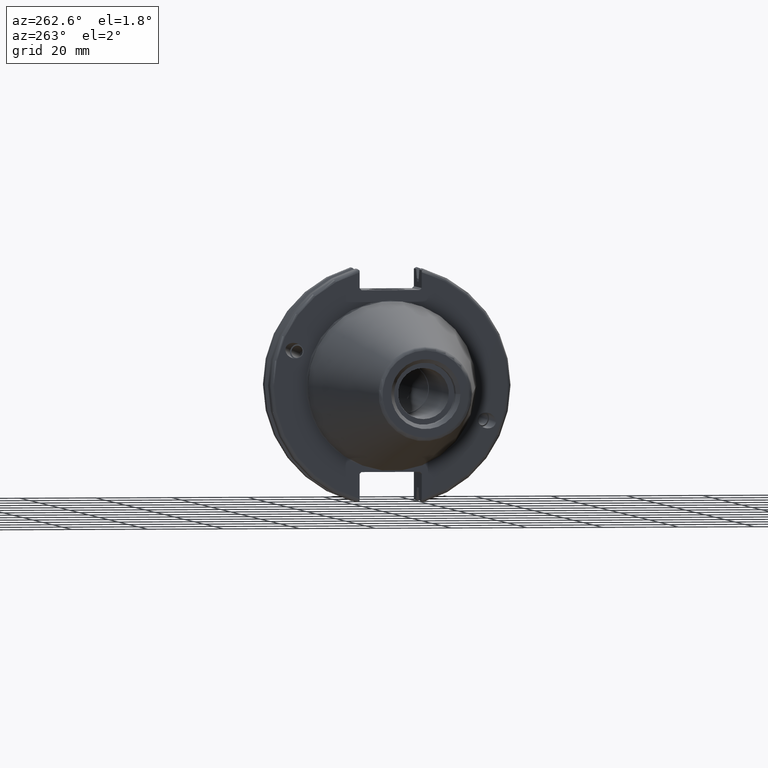
[diagram: clean part render]
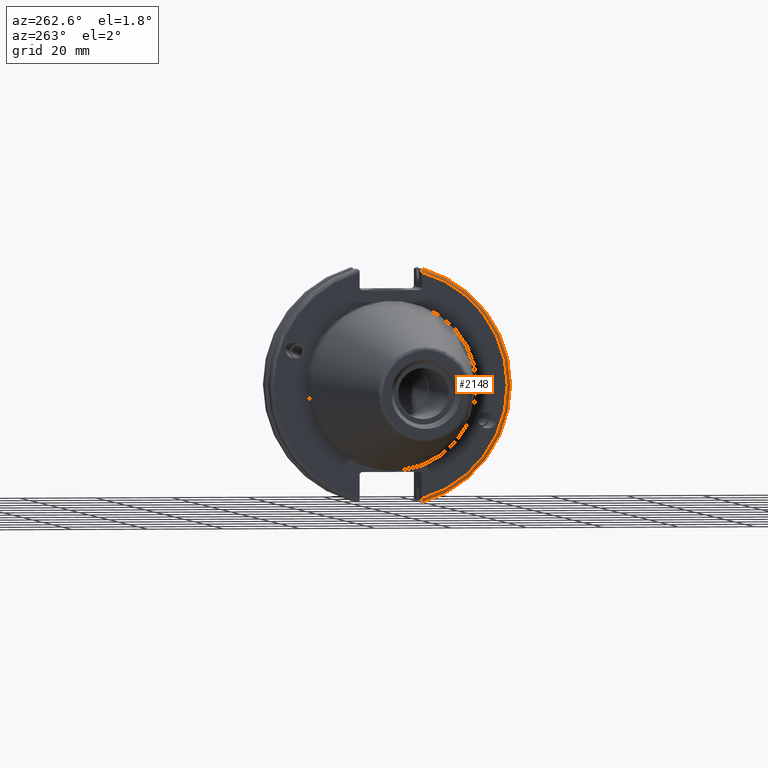
[diagram: same view with one face highlighted and labeled with its STEP entity id]
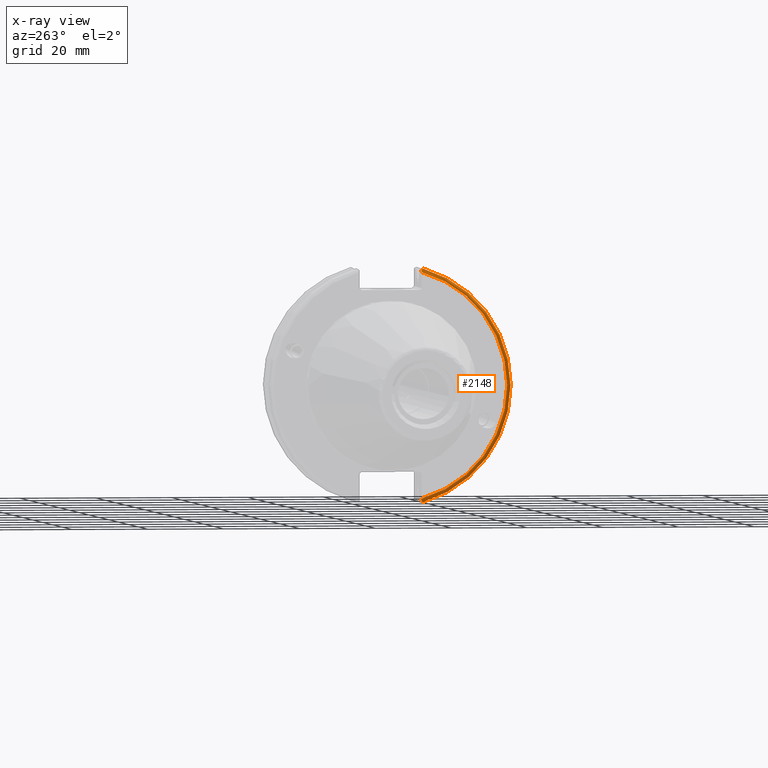
[diagram: x-ray of the same camera — body ghosted, the highlighted face saturated]
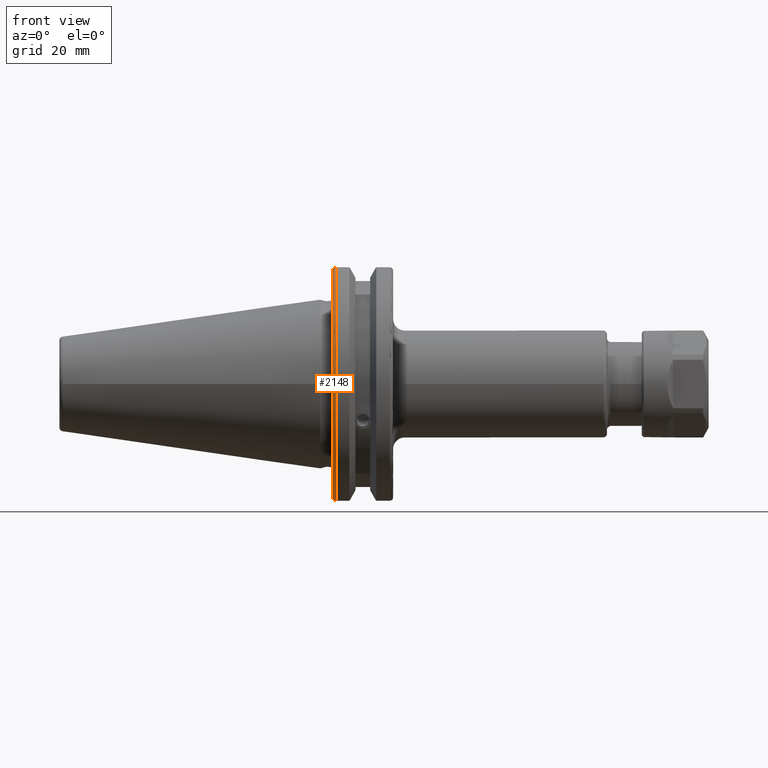
[diagram: same view with one face highlighted and labeled with its STEP entity id]
A machine part, auxiliary view. The second image highlights one B-rep face of the part: STEP entity #2148.
The next image is the same camera in x-ray: the body ghosted, the highlighted face saturated — about 0% of this face is hidden behind the body in this view.
A second angle (front view) of the same face is appended — the face is thin or edge-on in the first view.
In plain terms, the highlighted toroidal blend (fillet) surface has major radius 30.75 mm and minor (blend) radius 1 mm.
Its self-contained STEP definition (entity closure, byte-faithful):
#89=TOROIDAL_SURFACE('',#2426,30.75,1.);
#194=B_SPLINE_CURVE_WITH_KNOTS('',3,(#3838,#3839,#3840,#3841,#3842,#3843),
 .UNSPECIFIED.,.F.,.F.,(4,2,4),(0.0977210450333167,0.111963554372601,0.150804064902975),
 .UNSPECIFIED.);
#195=B_SPLINE_CURVE_WITH_KNOTS('',3,(#3864,#3865,#3866,#3867,#3868,#3869),
 .UNSPECIFIED.,.F.,.F.,(4,2,4),(0.452741154494498,0.491581665024872,0.505824174364157),
 .UNSPECIFIED.);
#196=B_SPLINE_CURVE_WITH_KNOTS('',3,(#3873,#3874,#3875,#3876,#3877,#3878,
#3879,#3880),.UNSPECIFIED.,.F.,.F.,(4,2,2,4),(-0.104180282751877,-0.0729784742461442,
-0.0343524753874977,0.),.UNSPECIFIED.);
#197=B_SPLINE_CURVE_WITH_KNOTS('',3,(#3883,#3884,#3885,#3886,#3887,#3888,
#3889,#3890),.UNSPECIFIED.,.F.,.F.,(4,2,2,4),(0.,0.0343524753874981,0.0729784742461436,
0.104180282751876),.UNSPECIFIED.);
#275=FACE_OUTER_BOUND('',#413,.T.);
#413=EDGE_LOOP('',(#1727,#1728,#1729,#1730,#1731,#1732));
#818=CIRCLE('',#2414,30.75);
#823=CIRCLE('',#2427,31.75);
#979=VERTEX_POINT('',#3718);
#980=VERTEX_POINT('',#3719);
#1003=VERTEX_POINT('',#3837);
#1009=VERTEX_POINT('',#3862);
#1010=VERTEX_POINT('',#3872);
#1011=VERTEX_POINT('',#3881);
#1232=EDGE_CURVE('',#979,#980,#818,.T.);
#1264=EDGE_CURVE('',#1003,#979,#194,.T.);
#1274=EDGE_CURVE('',#980,#1009,#195,.T.);
#1276=EDGE_CURVE('',#1009,#1010,#196,.T.);
#1277=EDGE_CURVE('',#1010,#1011,#823,.T.);
#1278=EDGE_CURVE('',#1011,#1003,#197,.T.);
#1727=ORIENTED_EDGE('',*,*,#1276,.T.);
#1728=ORIENTED_EDGE('',*,*,#1277,.T.);
#1729=ORIENTED_EDGE('',*,*,#1278,.T.);
#1730=ORIENTED_EDGE('',*,*,#1264,.T.);
#1731=ORIENTED_EDGE('',*,*,#1232,.T.);
#1732=ORIENTED_EDGE('',*,*,#1274,.T.);
#2148=ADVANCED_FACE('',(#275),#89,.T.);
#2414=AXIS2_PLACEMENT_3D('',#3720,#2854,#2855);
#2426=AXIS2_PLACEMENT_3D('',#3871,#2902,#2903);
#2427=AXIS2_PLACEMENT_3D('',#3882,#2904,#2905);
#2854=DIRECTION('center_axis',(1.,0.,0.));
#2855=DIRECTION('ref_axis',(0.,-1.,1.60812264967664E-16));
#2902=DIRECTION('center_axis',(1.,0.,0.));
#2903=DIRECTION('ref_axis',(0.,0.,-1.));
#2904=DIRECTION('center_axis',(-1.,0.,0.));
#2905=DIRECTION('ref_axis',(0.,-1.,1.60812264967664E-16));
#3718=CARTESIAN_POINT('',(3.175,-8.18999999999999,29.6392712461019));
#3719=CARTESIAN_POINT('',(3.175,-8.19,-29.6392712461019));
#3720=CARTESIAN_POINT('Origin',(3.175,0.,0.));
#3837=CARTESIAN_POINT('',(3.31912772509028,-8.19,30.1755016258903));
#3838=CARTESIAN_POINT('Ctrl Pts',(3.31912772509028,-8.19,30.1755016258903));
#3839=CARTESIAN_POINT('Ctrl Pts',(3.29318362718666,-8.19,30.131014531546));
#3840=CARTESIAN_POINT('Ctrl Pts',(3.27103565282437,-8.19,30.0852355256475));
#3841=CARTESIAN_POINT('Ctrl Pts',(3.20451443291695,-8.19,29.9212724384851));
#3842=CARTESIAN_POINT('Ctrl Pts',(3.175,-8.19,29.7687396145364));
#3843=CARTESIAN_POINT('Ctrl Pts',(3.175,-8.19,29.6392712461019));
#3862=CARTESIAN_POINT('',(3.31912772509028,-8.19,-30.1755016258903));
#3864=CARTESIAN_POINT('Ctrl Pts',(3.175,-8.19,-29.6392712461018));
#3865=CARTESIAN_POINT('Ctrl Pts',(3.175,-8.19,-29.7687396145364));
#3866=CARTESIAN_POINT('Ctrl Pts',(3.20451443291695,-8.19,-29.9212724384851));
#3867=CARTESIAN_POINT('Ctrl Pts',(3.27103565282437,-8.19,-30.0852355256475));
#3868=CARTESIAN_POINT('Ctrl Pts',(3.29318362718666,-8.19,-30.131014531546));
#3869=CARTESIAN_POINT('Ctrl Pts',(3.31912772509028,-8.19,-30.1755016258903));
#3871=CARTESIAN_POINT('Origin',(4.175,0.,0.));
#3872=CARTESIAN_POINT('',(4.175,-8.67204822802685,-30.5427254764662));
#3873=CARTESIAN_POINT('Ctrl Pts',(3.31912772509028,-8.19,-30.1755016258903));
#3874=CARTESIAN_POINT('Ctrl Pts',(3.36755369570113,-8.27036828330781,-30.2367261024977));
#3875=CARTESIAN_POINT('Ctrl Pts',(3.43232973376814,-8.34909446036477,-30.2966996242308));
#3876=CARTESIAN_POINT('Ctrl Pts',(3.58532758094931,-8.48862804755884,-30.4029961692546));
#3877=CARTESIAN_POINT('Ctrl Pts',(3.70655857052286,-8.56482138642532,-30.4610401774263));
#3878=CARTESIAN_POINT('Ctrl Pts',(3.92668295662254,-8.6471881193939,-30.5237870709558));
#3879=CARTESIAN_POINT('Ctrl Pts',(4.06049174870834,-8.67204822802686,-30.5427254764662));
#3880=CARTESIAN_POINT('Ctrl Pts',(4.175,-8.67204822802686,-30.5427254764662));
#3881=CARTESIAN_POINT('',(4.175,-8.67204822802685,30.5427254764662));
#3882=CARTESIAN_POINT('Origin',(4.175,0.,0.));
#3883=CARTESIAN_POINT('Ctrl Pts',(4.175,-8.67204822802686,30.5427254764662));
#3884=CARTESIAN_POINT('Ctrl Pts',(4.06049174870834,-8.67204822802686,30.5427254764662));
#3885=CARTESIAN_POINT('Ctrl Pts',(3.92668295662254,-8.64718811939389,30.5237870709558));
#3886=CARTESIAN_POINT('Ctrl Pts',(3.70655857052286,-8.56482138642532,30.4610401774263));
#3887=CARTESIAN_POINT('Ctrl Pts',(3.58532758094931,-8.48862804755884,30.4029961692546));
#3888=CARTESIAN_POINT('Ctrl Pts',(3.43232973376814,-8.34909446036478,30.2966996242308));
#3889=CARTESIAN_POINT('Ctrl Pts',(3.36755369570113,-8.2703682833078,30.2367261024977));
#3890=CARTESIAN_POINT('Ctrl Pts',(3.31912772509028,-8.19,30.1755016258903));